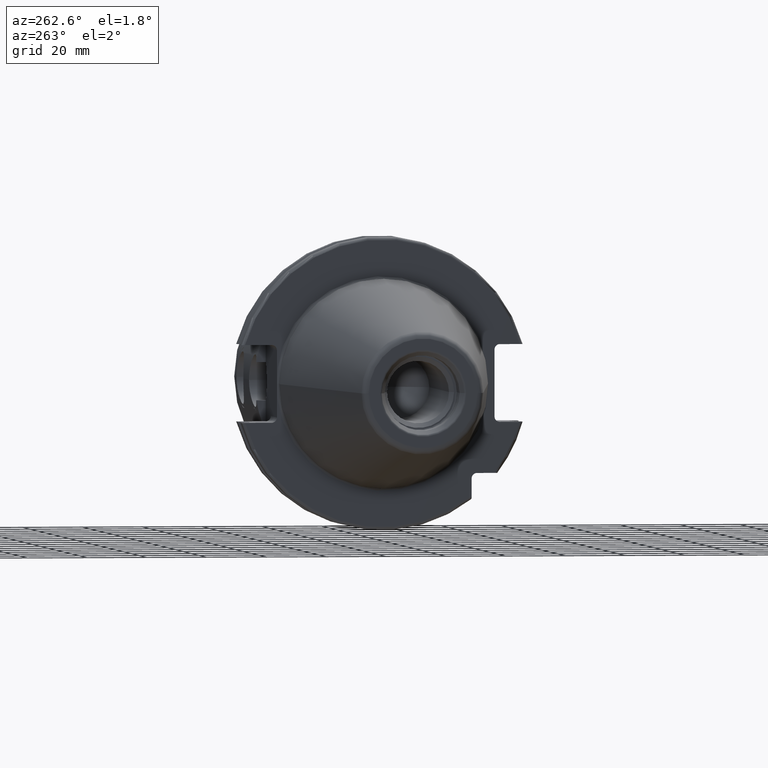
[diagram: clean part render]
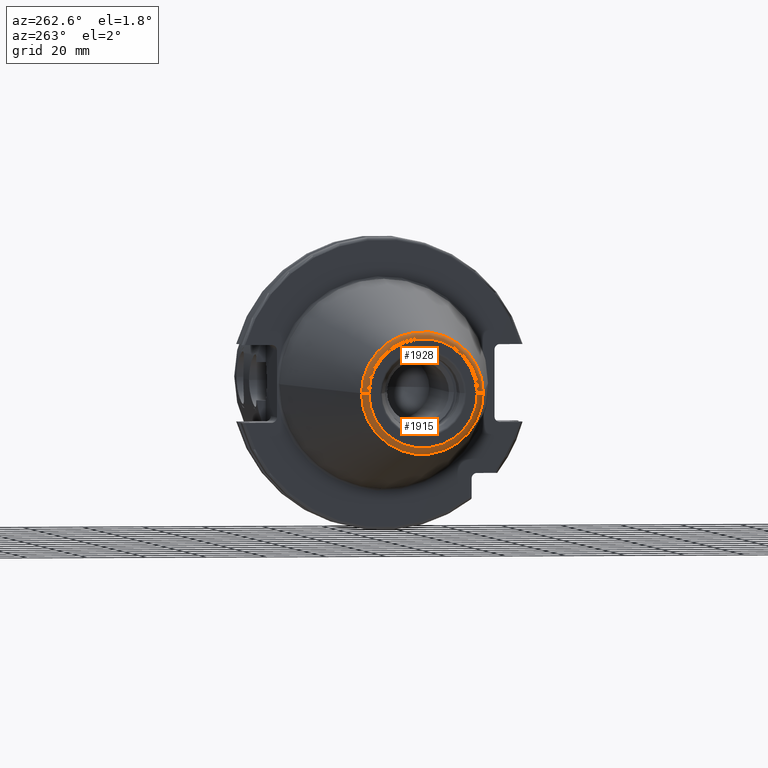
[diagram: same view with one multi-face feature highlighted, each face labeled with its STEP entity id]
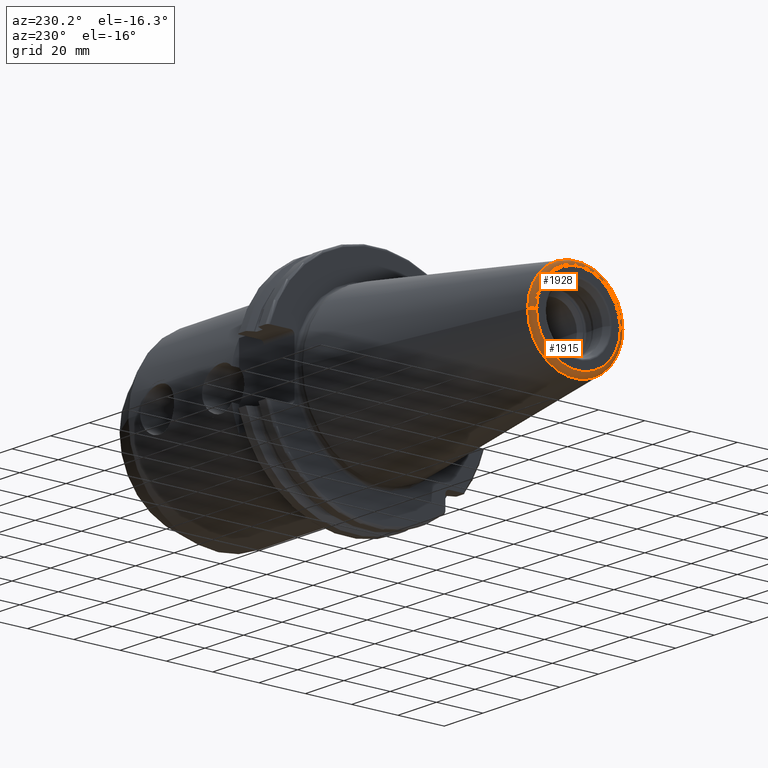
[diagram: same view with one multi-face feature highlighted, each face labeled with its STEP entity id]
A machine part, auxiliary view. The highlighted faces form ONE feature: a constant-radius fillet chain: 2 tangent blend faces with common blend radius 2.25 mm. The faces share edges in the B-rep.
A second angle (auxiliary view) of the same feature is appended — it is thin or edge-on in the first view.
Their STEP definitions:
[1] entity #1915 (Torus):
#2=CARTESIAN_POINT('',(-1.016E2,0.E0,0.E0));
#3=DIRECTION('',(-1.E0,0.E0,0.E0));
#4=DIRECTION('',(0.E0,1.E0,0.E0));
#5=AXIS2_PLACEMENT_3D('',#2,#3,#4);
#22=CARTESIAN_POINT('',(-9.935E1,1.816144700117E1,0.E0));
#23=DIRECTION('',(0.E0,0.E0,1.E0));
#24=DIRECTION('',(-1.443186691705E-1,9.895312636440E-1,0.E0));
#25=AXIS2_PLACEMENT_3D('',#22,#23,#24);
#27=CARTESIAN_POINT('',(-9.935E1,-1.816144700117E1,0.E0));
#28=DIRECTION('',(0.E0,0.E0,-1.E0));
#29=DIRECTION('',(-1.443186691705E-1,-9.895312636440E-1,0.E0));
#30=AXIS2_PLACEMENT_3D('',#27,#28,#29);
#32=CARTESIAN_POINT('',(-9.967471700563E1,0.E0,0.E0));
#33=DIRECTION('',(-1.E0,0.E0,0.E0));
#34=DIRECTION('',(0.E0,1.E0,0.E0));
#35=AXIS2_PLACEMENT_3D('',#32,#33,#34);
#1587=CARTESIAN_POINT('',(-9.967471700563E1,2.038789234437E1,0.E0));
#1588=CARTESIAN_POINT('',(-1.016E2,1.816144700117E1,0.E0));
#1589=VERTEX_POINT('',#1587);
#1590=VERTEX_POINT('',#1588);
#1591=CARTESIAN_POINT('',(-9.967471700563E1,-2.038789234437E1,0.E0));
#1592=CARTESIAN_POINT('',(-1.016E2,-1.816144700117E1,0.E0));
#1593=VERTEX_POINT('',#1591);
#1594=VERTEX_POINT('',#1592);
#1901=CARTESIAN_POINT('',(-9.935E1,0.E0,0.E0));
#1902=DIRECTION('',(1.E0,0.E0,0.E0));
#1903=DIRECTION('',(0.E0,-1.E0,0.E0));
#1904=AXIS2_PLACEMENT_3D('',#1901,#1902,#1903);
#1905=TOROIDAL_SURFACE('',#1904,1.816144700117E1,2.25E0);
#1907=ORIENTED_EDGE('',*,*,#1906,.T.);
#1908=ORIENTED_EDGE('',*,*,#1888,.T.);
#1910=ORIENTED_EDGE('',*,*,#1909,.F.);
#1912=ORIENTED_EDGE('',*,*,#1911,.F.);
#1913=EDGE_LOOP('',(#1907,#1908,#1910,#1912));
#1914=FACE_OUTER_BOUND('',#1913,.F.);
#1915=ADVANCED_FACE('',(#1914),#1905,.T.);
#6=CIRCLE('',#5,1.816144700117E1);
#26=CIRCLE('',#25,2.25E0);
#31=CIRCLE('',#30,2.25E0);
#36=CIRCLE('',#35,2.038789234437E1);
#1888=EDGE_CURVE('',#1590,#1594,#6,.T.);
#1906=EDGE_CURVE('',#1589,#1590,#26,.T.);
#1909=EDGE_CURVE('',#1593,#1594,#31,.T.);
#1911=EDGE_CURVE('',#1589,#1593,#36,.T.);
[2] entity #1928 (Torus):
#7=CARTESIAN_POINT('',(-1.016E2,0.E0,0.E0));
#8=DIRECTION('',(1.E0,0.E0,0.E0));
#9=DIRECTION('',(0.E0,1.E0,0.E0));
#10=AXIS2_PLACEMENT_3D('',#7,#8,#9);
#22=CARTESIAN_POINT('',(-9.935E1,1.816144700117E1,0.E0));
#23=DIRECTION('',(0.E0,0.E0,1.E0));
#24=DIRECTION('',(-1.443186691705E-1,9.895312636440E-1,0.E0));
#25=AXIS2_PLACEMENT_3D('',#22,#23,#24);
#27=CARTESIAN_POINT('',(-9.935E1,-1.816144700117E1,0.E0));
#28=DIRECTION('',(0.E0,0.E0,-1.E0));
#29=DIRECTION('',(-1.443186691705E-1,-9.895312636440E-1,0.E0));
#30=AXIS2_PLACEMENT_3D('',#27,#28,#29);
#37=CARTESIAN_POINT('',(-9.967471700563E1,0.E0,0.E0));
#38=DIRECTION('',(1.E0,0.E0,0.E0));
#39=DIRECTION('',(0.E0,1.E0,0.E0));
#40=AXIS2_PLACEMENT_3D('',#37,#38,#39);
#1587=CARTESIAN_POINT('',(-9.967471700563E1,2.038789234437E1,0.E0));
#1588=CARTESIAN_POINT('',(-1.016E2,1.816144700117E1,0.E0));
#1589=VERTEX_POINT('',#1587);
#1590=VERTEX_POINT('',#1588);
#1591=CARTESIAN_POINT('',(-9.967471700563E1,-2.038789234437E1,0.E0));
#1592=CARTESIAN_POINT('',(-1.016E2,-1.816144700117E1,0.E0));
#1593=VERTEX_POINT('',#1591);
#1594=VERTEX_POINT('',#1592);
#1916=CARTESIAN_POINT('',(-9.935E1,0.E0,0.E0));
#1917=DIRECTION('',(1.E0,0.E0,0.E0));
#1918=DIRECTION('',(0.E0,-1.E0,0.E0));
#1919=AXIS2_PLACEMENT_3D('',#1916,#1917,#1918);
#1920=TOROIDAL_SURFACE('',#1919,1.816144700117E1,2.25E0);
#1921=ORIENTED_EDGE('',*,*,#1906,.F.);
#1923=ORIENTED_EDGE('',*,*,#1922,.T.);
#1924=ORIENTED_EDGE('',*,*,#1909,.T.);
#1925=ORIENTED_EDGE('',*,*,#1890,.F.);
#1926=EDGE_LOOP('',(#1921,#1923,#1924,#1925));
#1927=FACE_OUTER_BOUND('',#1926,.F.);
#1928=ADVANCED_FACE('',(#1927),#1920,.T.);
#11=CIRCLE('',#10,1.816144700117E1);
#26=CIRCLE('',#25,2.25E0);
#31=CIRCLE('',#30,2.25E0);
#41=CIRCLE('',#40,2.038789234437E1);
#1890=EDGE_CURVE('',#1590,#1594,#11,.T.);
#1906=EDGE_CURVE('',#1589,#1590,#26,.T.);
#1909=EDGE_CURVE('',#1593,#1594,#31,.T.);
#1922=EDGE_CURVE('',#1589,#1593,#41,.T.);